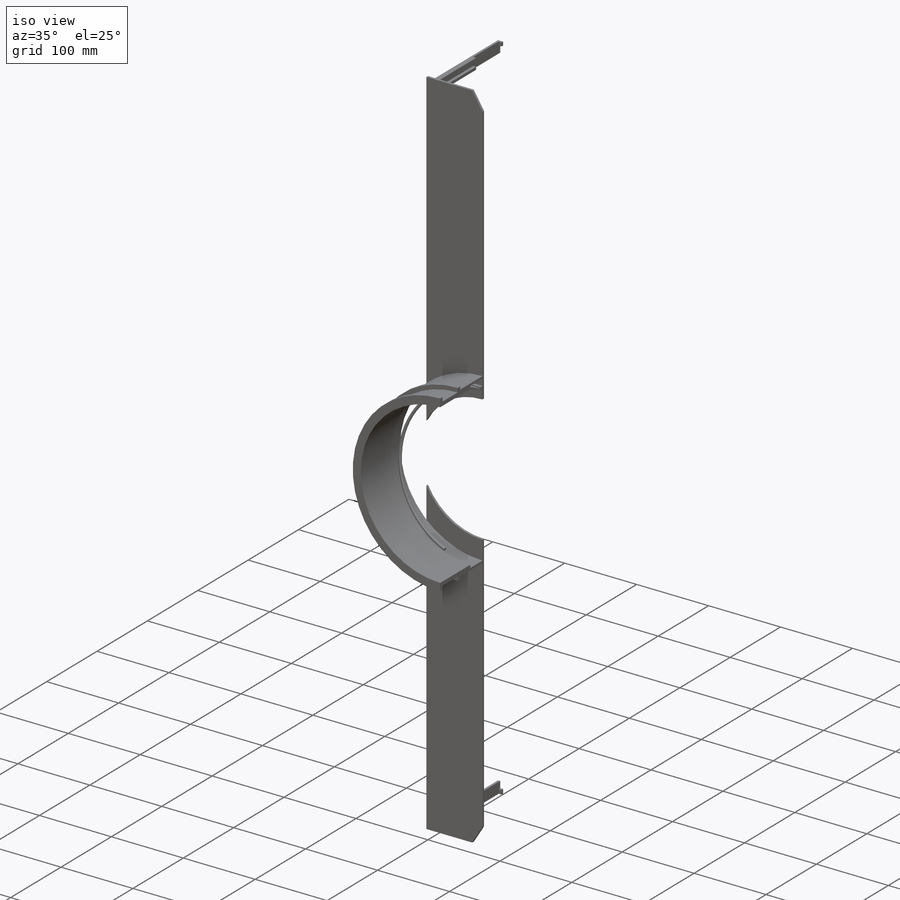
[diagram: iso view]
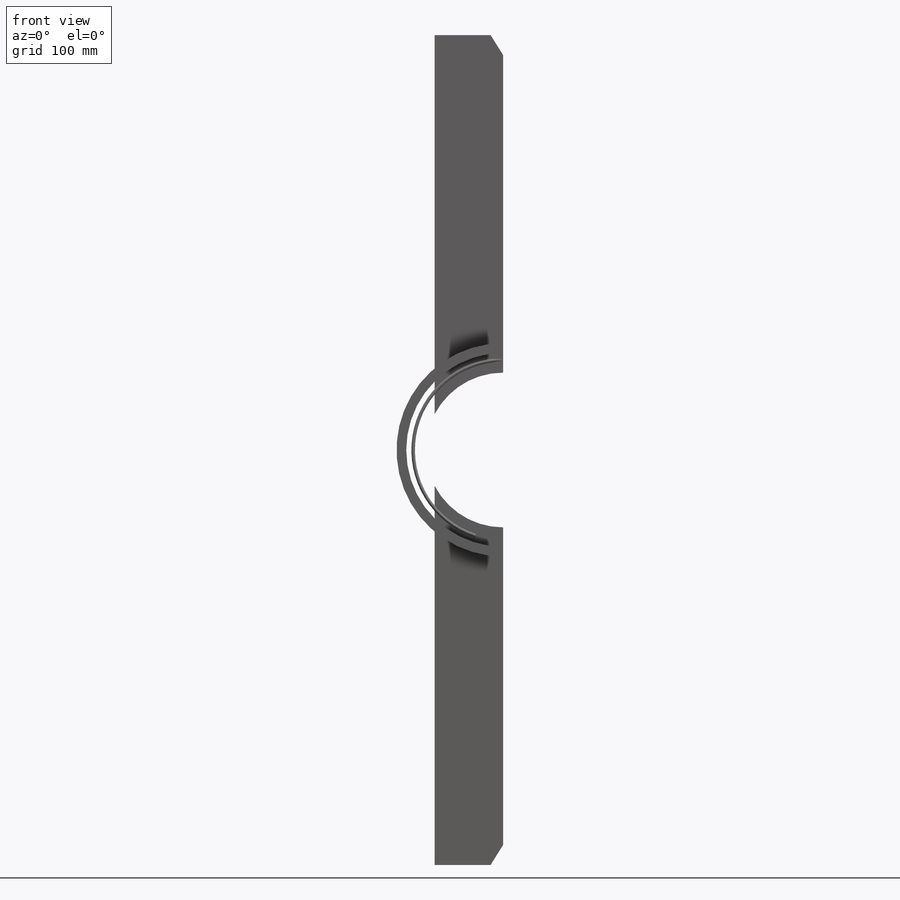
[diagram: front view]
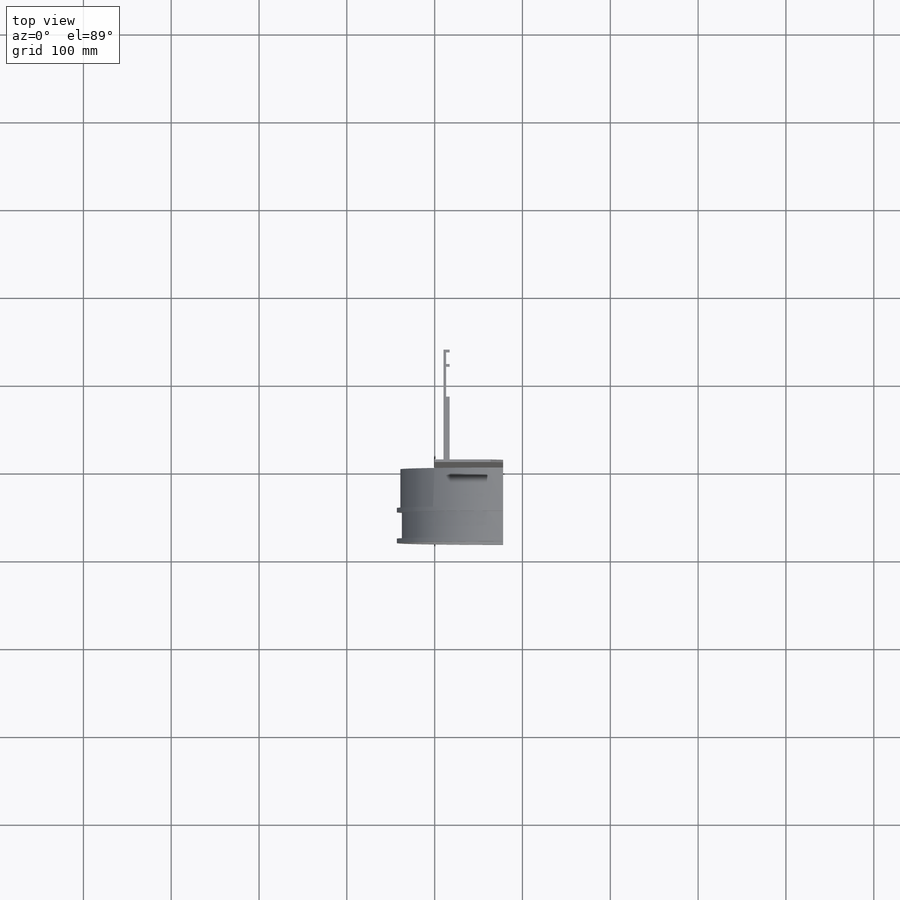
[diagram: top view]
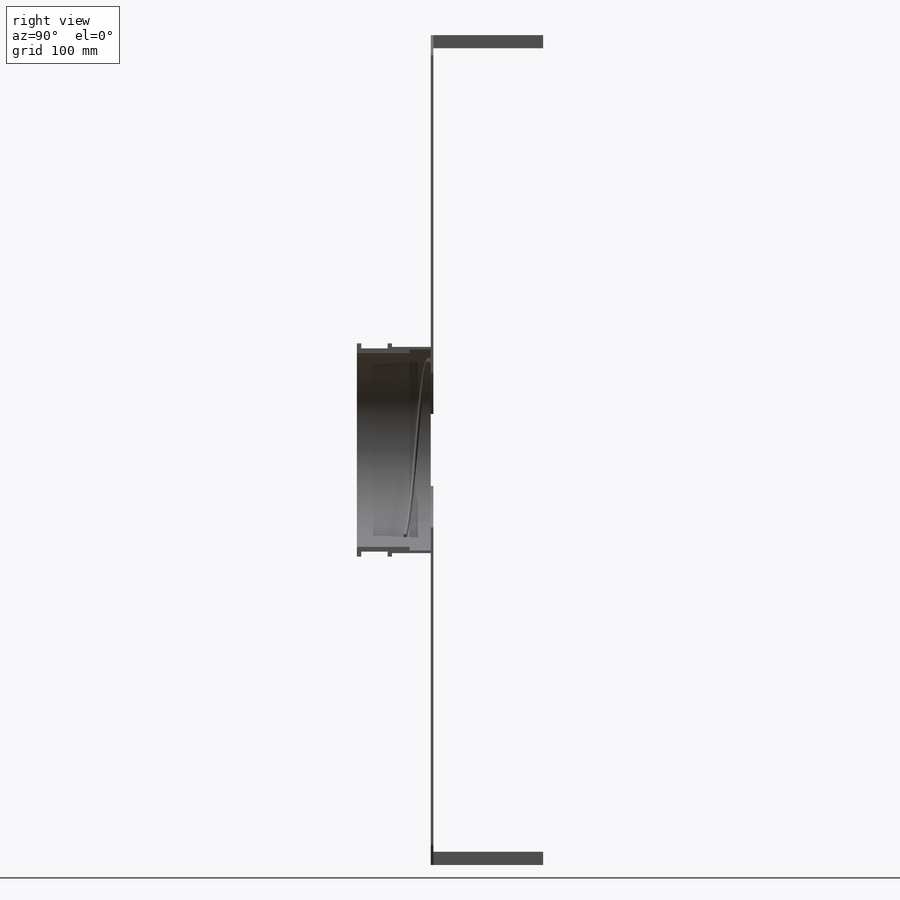
[diagram: right view]
SOLIDWORKS PART (.sldprt)
format: sldprt  version: not decoded by parser v0  size: 486,912 bytes
history: native  units: mm
features: sketch x18, extrude x11, cut_extrude x3, helix x2, sweep x2, material x1 (+16 scaffold rows collapsed)
feature tree (53):
  scaffold x16  (default folders/planes/origin — collapsed)
  material  "6063-T4"
  sketch  "Sketch1"  dims[D1=305.0mm D2=945.0mm]
  extrude  "Extrude1"  Depth=3mm
  sketch  "Sketch2"  dims[D2=234.8mm D3=228.8mm D1=78.0mm]
  extrude  "Extrude2"  Depth=24.1mm
  sketch  "Sketch3"  dims[D1=10.0mm D2=3.0mm FROM_TOP=15.0mm D3=15.0mm]
  extrude  "Extrude3"  Depth=125mm
  sketch  "Sketch4"  dims[D1=3.0mm D2=5.0mm D3=3.0mm D4=6.0mm]
  extrude  "Extrude4"  Depth=4mm
  sketch  "Sketch5"  dims[SIDE=85.0mm D1=85.0mm D2=3.0mm]
  extrude  "Extrude5"  Depth=197mm
  sketch  "Sketch6"  dims[D1=3.0mm]
  extrude  "Extrude6"  Depth=30mm
  sketch  "Sketch7"
  cut_extrude  "Extrude7"  [1 undecoded]
  sketch  "Sketch8"  dims[DIA=100.0mm D1=100.0mm D2=5.0mm D3=5.0mm]
  extrude  "Extrude9"  Depth=4mm
  sketch  "Sketch9"
  sketch  "Sketch10"
  helix  "Helix/Spiral1"  Pitch=27mm
  sweep  "Sweep1"
  sketch  "Sketch11"
  sketch  "Sketch12"
  helix  "Helix/Spiral3"  Pitch=27mm
  sweep  "Sweep9"
  sketch  "Sketch13"
  cut_extrude  "Extrude10"  [1 undecoded]
  sketch  "Sketch15"  dims[D1=234.8mm D2=220.74mm]
  extrude  "Extrude11"  Depth=25mm
  sketch  "Sketch16"
  extrude  "Extrude12"  Depth=5mm
  sketch  "Sketch17"  dims[D1=220.74mm D2=220.74mm]
  extrude  "Extrude13"  Depth=30mm
  sketch  "Sketch18"  dims[D1=220.74mm D2=220.74mm]
  extrude  "Extrude14"  Depth=5mm
  sketch  "Sketch19"
  cut_extrude  "Extrude16"  [1 undecoded]
decode coverage: 23 of 36 modeling features carry decoded parameters
note: 3 parameter values undecoded
summary: no parameter record found for 3 features
note: suppression state not decoded; provenance and decode notes live in map.json
